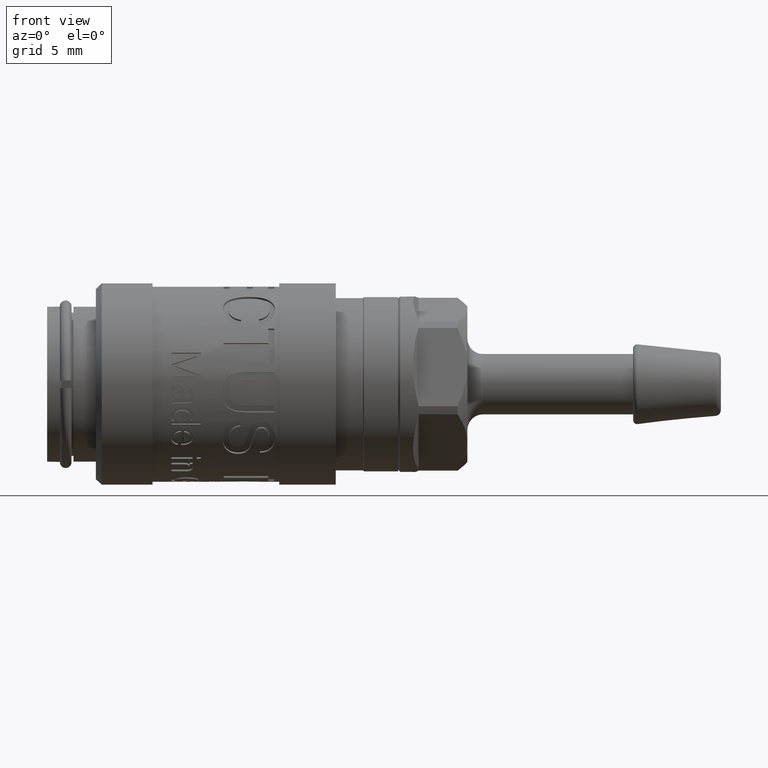
[diagram: clean part render]
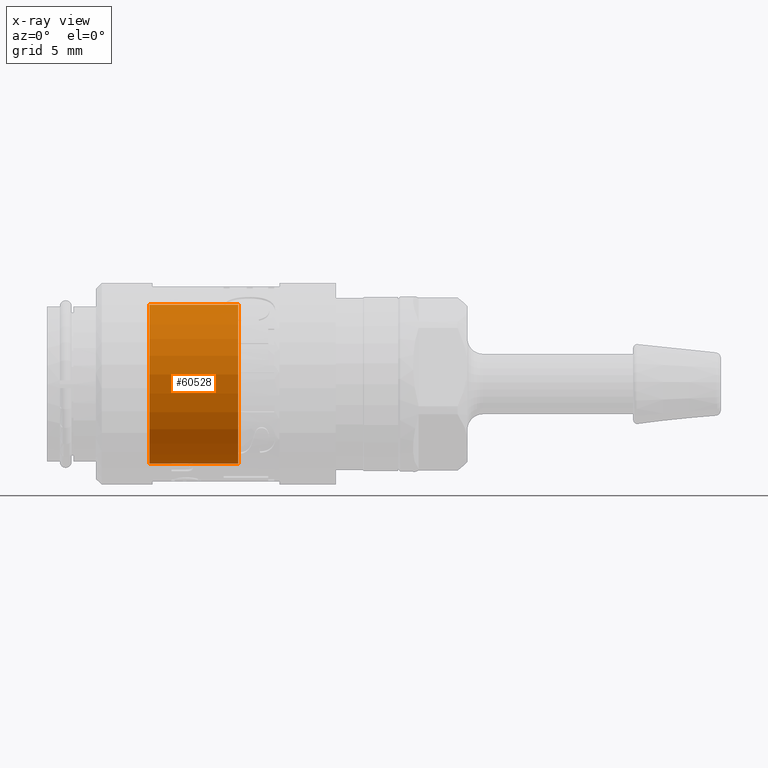
[diagram: x-ray — body ghosted, one internal face saturated and labeled with its STEP entity id]
A machine part, front view, then the same camera in x-ray: the body is ghosted and one INTERNAL B-rep face — a face not visible from any outside direction — is saturated and labeled: STEP entity #60528.
In plain terms, the highlighted cylindrical surface (bore or boss wall) has radius 4.075 mm, axis along (1, 0, 0).
Its self-contained STEP definition (entity closure, byte-faithful):
#60497=CARTESIAN_POINT('',(9.800000000000003,1.901471617918668,3.604168515240342));
#60498=VERTEX_POINT('',#60497);
#60499=CARTESIAN_POINT('',(9.800000000000003,0.0,0.0));
#60500=DIRECTION('',(1.0,0.0,0.0));
#60501=DIRECTION('',(0.0,0.466618801943231,0.884458531347323));
#60502=AXIS2_PLACEMENT_3D('',#60499,#60500,#60501);
#60503=CIRCLE('',#60502,4.075);
#60504=EDGE_CURVE('',#60498,#60498,#60503,.T.);
#60509=CARTESIAN_POINT('',(7.519337567297407,0.0,0.0));
#60510=DIRECTION('',(1.0,0.0,0.0));
#60511=DIRECTION('',(0.0,0.466618801943231,0.884458531347323));
#60512=AXIS2_PLACEMENT_3D('',#60509,#60510,#60511);
#60513=CYLINDRICAL_SURFACE('',#60512,4.074999999999999);
#60514=CARTESIAN_POINT('',(5.238675134594812,1.901471617918668,3.604168515240341));
#60515=VERTEX_POINT('',#60514);
#60516=CARTESIAN_POINT('',(5.238675134594812,0.0,0.0));
#60517=DIRECTION('',(1.0,0.0,0.0));
#60518=DIRECTION('',(0.0,0.466618801943231,0.884458531347323));
#60519=AXIS2_PLACEMENT_3D('',#60516,#60517,#60518);
#60520=CIRCLE('',#60519,4.074999999999999);
#60521=EDGE_CURVE('',#60515,#60515,#60520,.T.);
#60522=ORIENTED_EDGE('',*,*,#60521,.F.);
#60523=EDGE_LOOP('',(#60522));
#60524=FACE_OUTER_BOUND('',#60523,.T.);
#60525=ORIENTED_EDGE('',*,*,#60504,.T.);
#60526=EDGE_LOOP('',(#60525));
#60527=FACE_BOUND('',#60526,.T.);
#60528=ADVANCED_FACE('',(#60524,#60527),#60513,.F.);